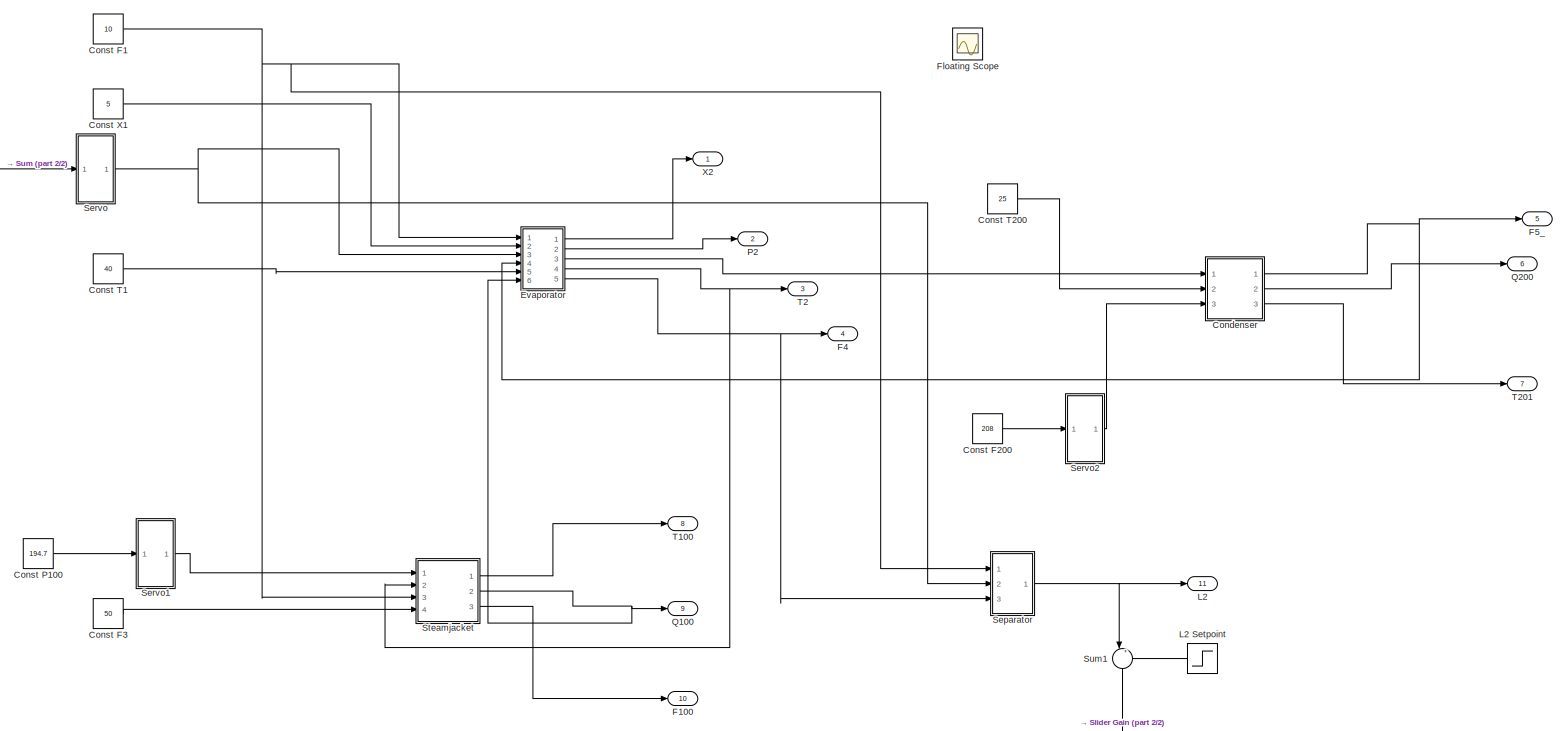
[diagram: root canvas - part 1/2, most of the canvas]
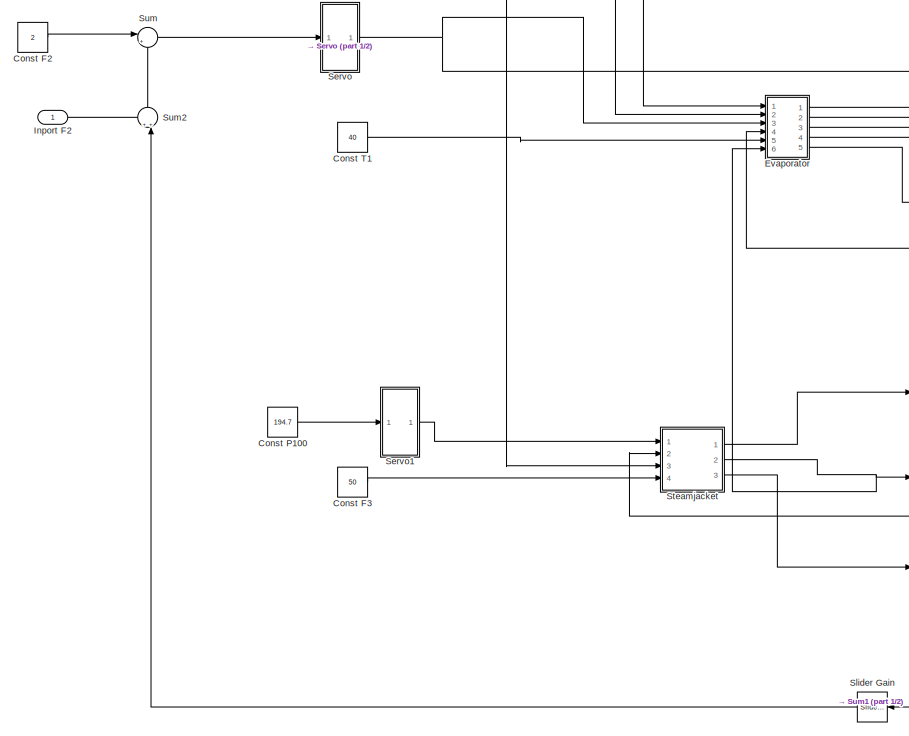
[diagram: root canvas - part 2/2, left side, full height]
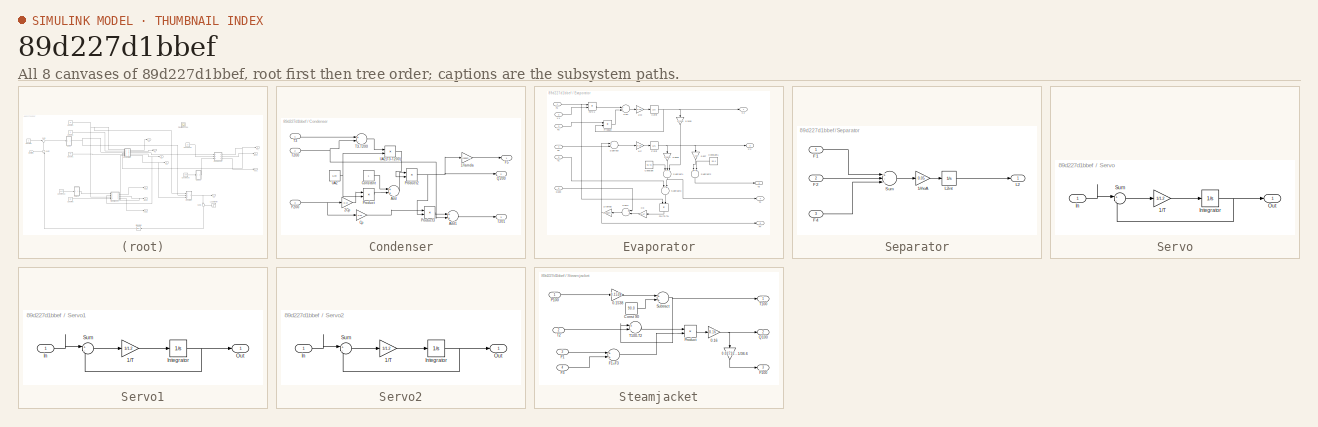
[diagram: thumbnail index - all 8 canvases of the model, root first then tree order]
MODEL slx_89d227d1bbef
KIND model
CONFIG AbsTol = auto
CONFIG EnableMultiTasking = off
CONFIG FixedStep = auto
CONFIG MaxStep = auto
CONFIG MinStep = auto
CONFIG RelTol = 1e-3
CONFIG SampleTimeConstraint = Unconstrained
CONFIG Solver = VariableStepAuto
CONFIG SolverName = VariableStepAuto
CONFIG StartTime = 0.0
CONFIG StopTime = 50
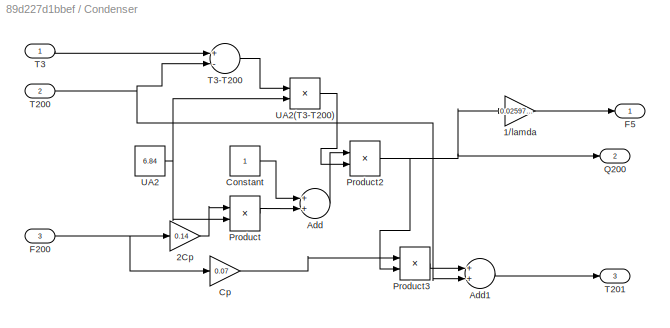
BLOCK [SubSystem] Condenser
  Ports = [3, 3]
  RequestExecContextInheritance = off
  Variant = off
BLOCK [Gain] Condenser/1//lamda
  Gain = 0.02597402597
  OutDataTypeStr = Inherit: Inherit via internal rule
  ParamDataTypeStr = Inherit: Inherit via internal rule
  SaturateOnIntegerOverflow = off
BLOCK [Gain] Condenser/2Cp
  Gain = 0.14
  OutDataTypeStr = Inherit: Inherit via internal rule
  ParamDataTypeStr = Inherit: Inherit via internal rule
  SaturateOnIntegerOverflow = off
BLOCK [Sum] Condenser/Add
  InputSameDT = off
  OutDataTypeStr = Inherit: Inherit via internal rule
  Ports = [2, 1]
  SaturateOnIntegerOverflow = off
BLOCK [Sum] Condenser/Add1
  InputSameDT = off
  OutDataTypeStr = Inherit: Inherit via internal rule
  Ports = [2, 1]
  SaturateOnIntegerOverflow = off
BLOCK [Constant] Condenser/Constant
BLOCK [Gain] Condenser/Cp
  Gain = 0.07
  OutDataTypeStr = Inherit: Inherit via internal rule
  ParamDataTypeStr = Inherit: Inherit via internal rule
  SaturateOnIntegerOverflow = off
BLOCK [Inport] Condenser/F200
  IconDisplay = Port number
  Port = 3
BLOCK [Outport] Condenser/F5
  IconDisplay = Port number
BLOCK [Product] Condenser/Product
  InputSameDT = off
  Inputs = /*
  OutDataTypeStr = Inherit: Inherit via internal rule
  Ports = [2, 1]
  RndMeth = Floor
  SaturateOnIntegerOverflow = off
BLOCK [Product] Condenser/Product2
  InputSameDT = off
  Inputs = /*
  OutDataTypeStr = Inherit: Inherit via internal rule
  Ports = [2, 1]
  RndMeth = Floor
  SaturateOnIntegerOverflow = off
BLOCK [Product] Condenser/Product3
  InputSameDT = off
  Inputs = /*
  OutDataTypeStr = Inherit: Inherit via internal rule
  Ports = [2, 1]
  RndMeth = Floor
  SaturateOnIntegerOverflow = off
BLOCK [Outport] Condenser/Q200
  IconDisplay = Port number
  Port = 2
BLOCK [Inport] Condenser/T200
  IconDisplay = Port number
  Port = 2
BLOCK [Outport] Condenser/T201
  IconDisplay = Port number
  Port = 3
BLOCK [Inport] Condenser/T3
  IconDisplay = Port number
BLOCK [Sum] Condenser/T3-T200
  InputSameDT = off
  Inputs = +-
  OutDataTypeStr = Inherit: Inherit via internal rule
  Ports = [2, 1]
  SaturateOnIntegerOverflow = off
BLOCK [Constant] Condenser/UA2
  Value = 6.84
BLOCK [Product] Condenser/UA2(T3-T200)
  InputSameDT = off
  OutDataTypeStr = Inherit: Inherit via internal rule
  Ports = [2, 1]
  RndMeth = Floor
  SaturateOnIntegerOverflow = off
BLOCK [Constant] Const F1
  Value = 10
BLOCK [Constant] Const F2
  Value = 2
BLOCK [Constant] Const F200
  Value = 208
BLOCK [Constant] Const F3
  Value = 50
BLOCK [Constant] Const P100
  Value = 194.7
BLOCK [Constant] Const T1
  Value = 40
BLOCK [Constant] Const T200
  Value = 25
BLOCK [Constant] Const X1
  Value = 5
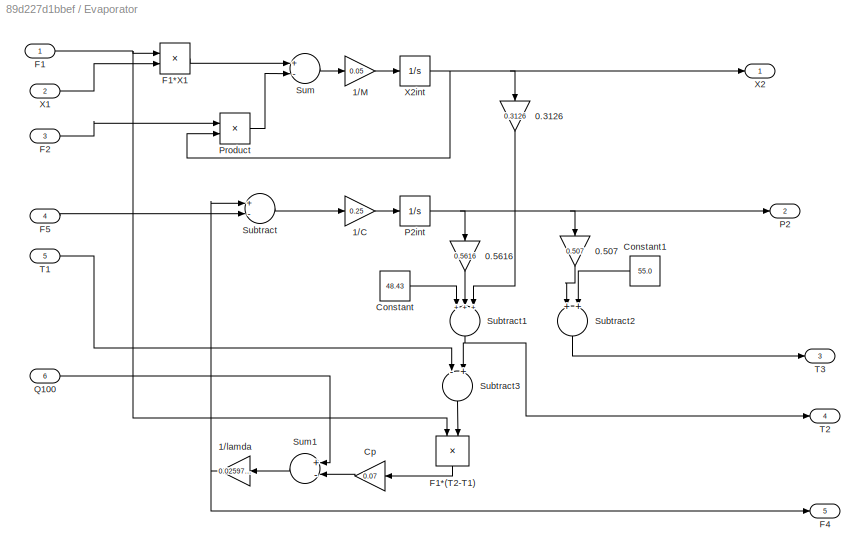
BLOCK [SubSystem] Evaporator
  Ports = [6, 5]
  RequestExecContextInheritance = off
  Variant = off
BLOCK [Gain] Evaporator/0.3126
  Gain = 0.3126
  OutDataTypeStr = Inherit: Inherit via internal rule
  ParamDataTypeStr = Inherit: Inherit via internal rule
  SaturateOnIntegerOverflow = off
BLOCK [Gain] Evaporator/0.507
  Gain = 0.507
  OutDataTypeStr = Inherit: Inherit via internal rule
  ParamDataTypeStr = Inherit: Inherit via internal rule
  SaturateOnIntegerOverflow = off
BLOCK [Gain] Evaporator/0.5616
  Gain = 0.5616
  OutDataTypeStr = Inherit: Inherit via internal rule
  ParamDataTypeStr = Inherit: Inherit via internal rule
  SaturateOnIntegerOverflow = off
BLOCK [Gain] Evaporator/1//C
  Gain = 0.25
  OutDataTypeStr = Inherit: Inherit via internal rule
  ParamDataTypeStr = Inherit: Inherit via internal rule
  SaturateOnIntegerOverflow = off
BLOCK [Gain] Evaporator/1//M
  Gain = 0.05
  OutDataTypeStr = Inherit: Inherit via internal rule
  ParamDataTypeStr = Inherit: Inherit via internal rule
  SaturateOnIntegerOverflow = off
BLOCK [Gain] Evaporator/1//lamda
  Gain = 0.02597402597
  OutDataTypeStr = Inherit: Inherit via internal rule
  ParamDataTypeStr = Inherit: Inherit via internal rule
  SaturateOnIntegerOverflow = off
BLOCK [Constant] Evaporator/Constant
  Value = 48.43
BLOCK [Constant] Evaporator/Constant1
  Value = 55.0
BLOCK [Gain] Evaporator/Cp
  Gain = 0.07
  OutDataTypeStr = Inherit: Inherit via internal rule
  ParamDataTypeStr = Inherit: Inherit via internal rule
  SaturateOnIntegerOverflow = off
BLOCK [Inport] Evaporator/F1
  IconDisplay = Port number
BLOCK [Product] Evaporator/F1*(T2-T1)
  InputSameDT = off
  OutDataTypeStr = Inherit: Inherit via internal rule
  Ports = [2, 1]
  RndMeth = Floor
  SaturateOnIntegerOverflow = off
BLOCK [Product] Evaporator/F1*X1
  InputSameDT = off
  OutDataTypeStr = Inherit: Inherit via internal rule
  Ports = [2, 1]
  RndMeth = Floor
  SaturateOnIntegerOverflow = off
BLOCK [Inport] Evaporator/F2
  IconDisplay = Port number
  Port = 3
BLOCK [Outport] Evaporator/F4
  IconDisplay = Port number
  Port = 5
BLOCK [Inport] Evaporator/F5
  IconDisplay = Port number
  Port = 4
BLOCK [Outport] Evaporator/P2
  IconDisplay = Port number
  Port = 2
BLOCK [Integrator] Evaporator/P2int
  InitialCondition = 50.5
  Ports = [1, 1]
BLOCK [Product] Evaporator/Product
  InputSameDT = off
  OutDataTypeStr = Inherit: Inherit via internal rule
  Ports = [2, 1]
  RndMeth = Floor
  SaturateOnIntegerOverflow = off
BLOCK [Inport] Evaporator/Q100
  IconDisplay = Port number
  Port = 6
BLOCK [Sum] Evaporator/Subtract
  InputSameDT = off
  Inputs = +-
  OutDataTypeStr = Inherit: Inherit via internal rule
  Ports = [2, 1]
  SaturateOnIntegerOverflow = off
BLOCK [Sum] Evaporator/Subtract1
  InputSameDT = off
  Inputs = +++
  OutDataTypeStr = Inherit: Inherit via internal rule
  Ports = [3, 1]
  SaturateOnIntegerOverflow = off
BLOCK [Sum] Evaporator/Subtract2
  InputSameDT = off
  OutDataTypeStr = Inherit: Inherit via internal rule
  Ports = [2, 1]
  SaturateOnIntegerOverflow = off
BLOCK [Sum] Evaporator/Subtract3
  InputSameDT = off
  Inputs = -+
  OutDataTypeStr = Inherit: Inherit via internal rule
  Ports = [2, 1]
  SaturateOnIntegerOverflow = off
BLOCK [Sum] Evaporator/Sum
  InputSameDT = off
  Inputs = +-
  OutDataTypeStr = Inherit: Inherit via internal rule
  Ports = [2, 1]
  SaturateOnIntegerOverflow = off
BLOCK [Sum] Evaporator/Sum1
  InputSameDT = off
  Inputs = +-
  OutDataTypeStr = Inherit: Inherit via internal rule
  Ports = [2, 1]
  SaturateOnIntegerOverflow = off
BLOCK [Inport] Evaporator/T1
  IconDisplay = Port number
  Port = 5
BLOCK [Outport] Evaporator/T2
  IconDisplay = Port number
  Port = 4
BLOCK [Outport] Evaporator/T3
  IconDisplay = Port number
  Port = 3
BLOCK [Inport] Evaporator/X1
  IconDisplay = Port number
  Port = 2
BLOCK [Outport] Evaporator/X2
  IconDisplay = Port number
BLOCK [Integrator] Evaporator/X2int
  InitialCondition = 25
  Ports = [1, 1]
BLOCK [Outport] F100
  IconDisplay = Port number
  Port = 10
BLOCK [Outport] F4
  IconDisplay = Port number
  Port = 4
BLOCK [Outport] F5_
  IconDisplay = Port number
  Port = 5
BLOCK [Scope] Floating Scope
  Floating = on
  NumInputPorts = 1
  Ports = []
  ScopeSpecificationString = Simulink.scopes.TimeScopeBlockCfg('CurrentConfiguration', extmgr.ConfigurationSet(extmgr.Configuration('Core','General UI',true),extmgr.Configuration('Core','Source UI',true),extmgr.Configuration('Sources','WiredSimulink',true),extmgr.Configuration('Visuals','Time Domain',true,'SerializedDisplays',{struct('MinYLimReal','0.93571','MaxYLimReal','1.57828','YLabelReal','','MinYLimMag','0.93571','MaxYL...<+1420ch>
BLOCK [Inport] Inport F2
  IconDisplay = Port number
BLOCK [Outport] L2
  IconDisplay = Port number
  Port = 11
BLOCK [Step] L2 Setpoint
  After = 1.4
  Before = 1
  SampleTime = 0
BLOCK [Outport] P2
  IconDisplay = Port number
  Port = 2
BLOCK [Outport] Q100
  IconDisplay = Port number
  Port = 9
BLOCK [Outport] Q200
  IconDisplay = Port number
  Port = 6
BLOCK [SubSystem] Separator
  Ports = [3, 1]
  RequestExecContextInheritance = off
  Variant = off
BLOCK [Gain] Separator/1//rhoA
  Gain = 0.05
  OutDataTypeStr = Inherit: Inherit via internal rule
  ParamDataTypeStr = Inherit: Inherit via internal rule
  SaturateOnIntegerOverflow = off
BLOCK [Inport] Separator/F1
  IconDisplay = Port number
BLOCK [Inport] Separator/F2
  IconDisplay = Port number
  Port = 2
BLOCK [Inport] Separator/F4
  IconDisplay = Port number
  Port = 3
BLOCK [Outport] Separator/L2
  IconDisplay = Port number
BLOCK [Integrator] Separator/L2int
  InitialCondition = 1
  Ports = [1, 1]
BLOCK [Sum] Separator/Sum
  InputSameDT = off
  Inputs = +--
  OutDataTypeStr = Inherit: Inherit via internal rule
  Ports = [3, 1]
  SaturateOnIntegerOverflow = off
BLOCK [SubSystem] Servo
  Ports = [1, 1]
  RequestExecContextInheritance = off
  Variant = off
BLOCK [Gain] Servo/1//T
  Gain = 1/1.2
  OutDataTypeStr = Inherit: Inherit via internal rule
  ParamDataTypeStr = Inherit: Inherit via internal rule
  SaturateOnIntegerOverflow = off
BLOCK [Inport] Servo/In
  IconDisplay = Port number
BLOCK [Integrator] Servo/Integrator
  InitialCondition = 2
  Ports = [1, 1]
BLOCK [Outport] Servo/Out
  IconDisplay = Port number
BLOCK [Sum] Servo/Sum
  IconShape = round
  InputSameDT = off
  Inputs = +-
  OutDataTypeStr = Inherit: Inherit via internal rule
  Ports = [2, 1]
  SaturateOnIntegerOverflow = off
BLOCK [SubSystem] Servo1
  Ports = [1, 1]
  RequestExecContextInheritance = off
  Variant = off
BLOCK [Gain] Servo1/1//T
  Gain = 1/1.2
  OutDataTypeStr = Inherit: Inherit via internal rule
  ParamDataTypeStr = Inherit: Inherit via internal rule
  SaturateOnIntegerOverflow = off
BLOCK [Inport] Servo1/In
  IconDisplay = Port number
BLOCK [Integrator] Servo1/Integrator
  InitialCondition = 194.7
  Ports = [1, 1]
BLOCK [Outport] Servo1/Out
  IconDisplay = Port number
BLOCK [Sum] Servo1/Sum
  IconShape = round
  InputSameDT = off
  Inputs = +-
  OutDataTypeStr = Inherit: Inherit via internal rule
  Ports = [2, 1]
  SaturateOnIntegerOverflow = off
BLOCK [SubSystem] Servo2
  Ports = [1, 1]
  RequestExecContextInheritance = off
  Variant = off
BLOCK [Gain] Servo2/1//T
  Gain = 1/1.2
  OutDataTypeStr = Inherit: Inherit via internal rule
  ParamDataTypeStr = Inherit: Inherit via internal rule
  SaturateOnIntegerOverflow = off
BLOCK [Inport] Servo2/In
  IconDisplay = Port number
BLOCK [Integrator] Servo2/Integrator
  InitialCondition = 208
  Ports = [1, 1]
BLOCK [Outport] Servo2/Out
  IconDisplay = Port number
BLOCK [Sum] Servo2/Sum
  IconShape = round
  InputSameDT = off
  Inputs = +-
  OutDataTypeStr = Inherit: Inherit via internal rule
  Ports = [2, 1]
  SaturateOnIntegerOverflow = off
BLOCK [Reference] Slider Gain  REF=simulink/Math
Operations/Slider
Gain
  Ports = [1, 1]
  SourceBlock = simulink/Math\nOperations/Slider\nGain
  SourceProductBaseCode = SL
  SourceProductName = Simulink
  SourceType = Slider Gain
BLOCK [SubSystem] Steamjacket
  Ports = [4, 3]
  RequestExecContextInheritance = off
  Variant = off
BLOCK [Gain] Steamjacket/0.1538
  Gain = 0.1538
  OutDataTypeStr = Inherit: Inherit via internal rule
  ParamDataTypeStr = Inherit: Inherit via internal rule
  SaturateOnIntegerOverflow = off
BLOCK [Gain] Steamjacket/0.16
  Gain = 0.16
  OutDataTypeStr = Inherit: Inherit via internal rule
  ParamDataTypeStr = Inherit: Inherit via internal rule
  SaturateOnIntegerOverflow = off
BLOCK [Gain] Steamjacket/1//36.6
  Gain = 0.02732240437
  OutDataTypeStr = Inherit: Inherit via internal rule
  ParamDataTypeStr = Inherit: Inherit via internal rule
  SaturateOnIntegerOverflow = off
BLOCK [Constant] Steamjacket/Const 90
  Value = 90.0
BLOCK [Inport] Steamjacket/F1
  IconDisplay = Port number
  Port = 3
BLOCK [Sum] Steamjacket/F1+F3
  InputSameDT = off
  OutDataTypeStr = Inherit: Inherit via internal rule
  Ports = [2, 1]
  SaturateOnIntegerOverflow = off
BLOCK [Outport] Steamjacket/F100
  IconDisplay = Port number
  Port = 3
BLOCK [Inport] Steamjacket/F3
  IconDisplay = Port number
  Port = 4
BLOCK [Inport] Steamjacket/P100
  IconDisplay = Port number
BLOCK [Product] Steamjacket/Product
  InputSameDT = off
  OutDataTypeStr = Inherit: Inherit via internal rule
  Ports = [2, 1]
  RndMeth = Floor
  SaturateOnIntegerOverflow = off
BLOCK [Outport] Steamjacket/Q100
  IconDisplay = Port number
  Port = 2
BLOCK [Sum] Steamjacket/Subtract
  InputSameDT = off
  OutDataTypeStr = Inherit: Inherit via internal rule
  Ports = [2, 1]
  SaturateOnIntegerOverflow = off
BLOCK [Outport] Steamjacket/T100
  IconDisplay = Port number
BLOCK [Sum] Steamjacket/T100-T2
  InputSameDT = off
  Inputs = +-
  OutDataTypeStr = Inherit: Inherit via internal rule
  Ports = [2, 1]
  SaturateOnIntegerOverflow = off
BLOCK [Inport] Steamjacket/T2
  IconDisplay = Port number
  Port = 2
BLOCK [Sum] Sum
  IconShape = round
  InputSameDT = off
  Inputs = |+-
  OutDataTypeStr = Inherit: Inherit via internal rule
  Ports = [2, 1]
  SaturateOnIntegerOverflow = off
BLOCK [Sum] Sum1
  IconShape = round
  InputSameDT = off
  Inputs = |+-
  OutDataTypeStr = Inherit: Inherit via internal rule
  Ports = [2, 1]
  SaturateOnIntegerOverflow = off
BLOCK [Sum] Sum2
  IconShape = round
  InputSameDT = off
  Inputs = ++|
  OutDataTypeStr = Inherit: Inherit via internal rule
  Ports = [2, 1]
  SaturateOnIntegerOverflow = off
BLOCK [Outport] T100
  IconDisplay = Port number
  Port = 8
BLOCK [Outport] T2
  IconDisplay = Port number
  Port = 3
BLOCK [Outport] T201
  IconDisplay = Port number
  Port = 7
BLOCK [Outport] X2
  IconDisplay = Port number
LINE Condenser/1//lamda:1 -> Condenser/F5:1
LINE Condenser/2Cp:1 -> Condenser/Product:1
LINE Condenser/Add1:1 -> Condenser/T201:1
LINE Condenser/Add:1 -> Condenser/Product2:1
LINE Condenser/Constant:1 -> Condenser/Add:1
LINE Condenser/Cp:1 -> Condenser/Product3:1
NET Condenser/F200:1 -> Condenser/2Cp:1, Condenser/Cp:1
NET Condenser/Product2:1 -> Condenser/1//lamda:1, Condenser/Product3:2, Condenser/Q200:1
LINE Condenser/Product3:1 -> Condenser/Add1:1
LINE Condenser/Product:1 -> Condenser/Add:2
NET Condenser/T200:1 -> Condenser/Add1:2, Condenser/T3-T200:2
LINE Condenser/T3-T200:1 -> Condenser/UA2(T3-T200):1
LINE Condenser/T3:1 -> Condenser/T3-T200:1
LINE Condenser/UA2(T3-T200):1 -> Condenser/Product2:2
NET Condenser/UA2:1 -> Condenser/Product:2, Condenser/UA2(T3-T200):2
NET Condenser:1 -> Evaporator:4, F5_:1
LINE Condenser:2 -> Q200:1
LINE Condenser:3 -> T201:1
NET Const F1:1 -> Evaporator:1, Separator:1, Steamjacket:3
LINE Const F200:1 -> Servo2:1
LINE Const F2:1 -> Sum:1
LINE Const F3:1 -> Steamjacket:4
LINE Const P100:1 -> Servo1:1
LINE Const T1:1 -> Evaporator:5
LINE Const T200:1 -> Condenser:2
LINE Const X1:1 -> Evaporator:2
LINE Evaporator/0.3126:1 -> Evaporator/Subtract1:3
LINE Evaporator/0.507:1 -> Evaporator/Subtract2:1
LINE Evaporator/0.5616:1 -> Evaporator/Subtract1:2
LINE Evaporator/1//C:1 -> Evaporator/P2int:1
LINE Evaporator/1//M:1 -> Evaporator/X2int:1
NET Evaporator/1//lamda:1 -> Evaporator/F4:1, Evaporator/Subtract:1
LINE Evaporator/Constant1:1 -> Evaporator/Subtract2:2
LINE Evaporator/Constant:1 -> Evaporator/Subtract1:1
LINE Evaporator/Cp:1 -> Evaporator/Sum1:2
LINE Evaporator/F1*(T2-T1):1 -> Evaporator/Cp:1
LINE Evaporator/F1*X1:1 -> Evaporator/Sum:1
NET Evaporator/F1:1 -> Evaporator/F1*(T2-T1):1, Evaporator/F1*X1:1
LINE Evaporator/F2:1 -> Evaporator/Product:1
LINE Evaporator/F5:1 -> Evaporator/Subtract:2
NET Evaporator/P2int:1 -> Evaporator/0.507:1, Evaporator/0.5616:1, Evaporator/P2:1
LINE Evaporator/Product:1 -> Evaporator/Sum:2
LINE Evaporator/Q100:1 -> Evaporator/Sum1:1
NET Evaporator/Subtract1:1 -> Evaporator/Subtract3:2, Evaporator/T2:1
LINE Evaporator/Subtract2:1 -> Evaporator/T3:1
LINE Evaporator/Subtract3:1 -> Evaporator/F1*(T2-T1):2
LINE Evaporator/Subtract:1 -> Evaporator/1//C:1
LINE Evaporator/Sum1:1 -> Evaporator/1//lamda:1
LINE Evaporator/Sum:1 -> Evaporator/1//M:1
LINE Evaporator/T1:1 -> Evaporator/Subtract3:1
LINE Evaporator/X1:1 -> Evaporator/F1*X1:2
NET Evaporator/X2int:1 -> Evaporator/0.3126:1, Evaporator/Product:2, Evaporator/X2:1
LINE Evaporator:1 -> X2:1
LINE Evaporator:2 -> P2:1
LINE Evaporator:3 -> Condenser:1
NET Evaporator:4 -> Steamjacket:2, T2:1
NET Evaporator:5 -> F4:1, Separator:3
LINE Inport F2:1 -> Sum2:1
LINE L2 Setpoint:1 -> Sum1:2
LINE Separator/1//rhoA:1 -> Separator/L2int:1
LINE Separator/F1:1 -> Separator/Sum:1
LINE Separator/F2:1 -> Separator/Sum:2
LINE Separator/F4:1 -> Separator/Sum:3
LINE Separator/L2int:1 -> Separator/L2:1
LINE Separator/Sum:1 -> Separator/1//rhoA:1
NET Separator:1 -> L2:1, Sum1:1
LINE Servo/1//T:1 -> Servo/Integrator:1
LINE Servo/In:1 -> Servo/Sum:1
NET Servo/Integrator:1 -> Servo/Out:1, Servo/Sum:2
LINE Servo/Sum:1 -> Servo/1//T:1
LINE Servo1/1//T:1 -> Servo1/Integrator:1
LINE Servo1/In:1 -> Servo1/Sum:1
NET Servo1/Integrator:1 -> Servo1/Out:1, Servo1/Sum:2
LINE Servo1/Sum:1 -> Servo1/1//T:1
LINE Servo1:1 -> Steamjacket:1
LINE Servo2/1//T:1 -> Servo2/Integrator:1
LINE Servo2/In:1 -> Servo2/Sum:1
NET Servo2/Integrator:1 -> Servo2/Out:1, Servo2/Sum:2
LINE Servo2/Sum:1 -> Servo2/1//T:1
LINE Servo2:1 -> Condenser:3
NET Servo:1 -> Evaporator:3, Separator:2
LINE Slider Gain:1 -> Sum2:2
LINE Steamjacket/0.1538:1 -> Steamjacket/Subtract:1
NET Steamjacket/0.16:1 -> Steamjacket/1//36.6:1, Steamjacket/Q100:1
LINE Steamjacket/1//36.6:1 -> Steamjacket/F100:1
LINE Steamjacket/Const 90:1 -> Steamjacket/Subtract:2
LINE Steamjacket/F1+F3:1 -> Steamjacket/Product:2
LINE Steamjacket/F1:1 -> Steamjacket/F1+F3:1
LINE Steamjacket/F3:1 -> Steamjacket/F1+F3:2
LINE Steamjacket/P100:1 -> Steamjacket/0.1538:1
LINE Steamjacket/Product:1 -> Steamjacket/0.16:1
NET Steamjacket/Subtract:1 -> Steamjacket/T100-T2:1, Steamjacket/T100:1
LINE Steamjacket/T100-T2:1 -> Steamjacket/Product:1
LINE Steamjacket/T2:1 -> Steamjacket/T100-T2:2
LINE Steamjacket:1 -> T100:1
NET Steamjacket:2 -> Evaporator:6, Q100:1
LINE Steamjacket:3 -> F100:1
LINE Sum1:1 -> Slider Gain:1
LINE Sum2:1 -> Sum:2
LINE Sum:1 -> Servo:1
note: NET lines group one-source signal fan-out (src -> all destinations, sorted); 1:1 wires keep LINE
